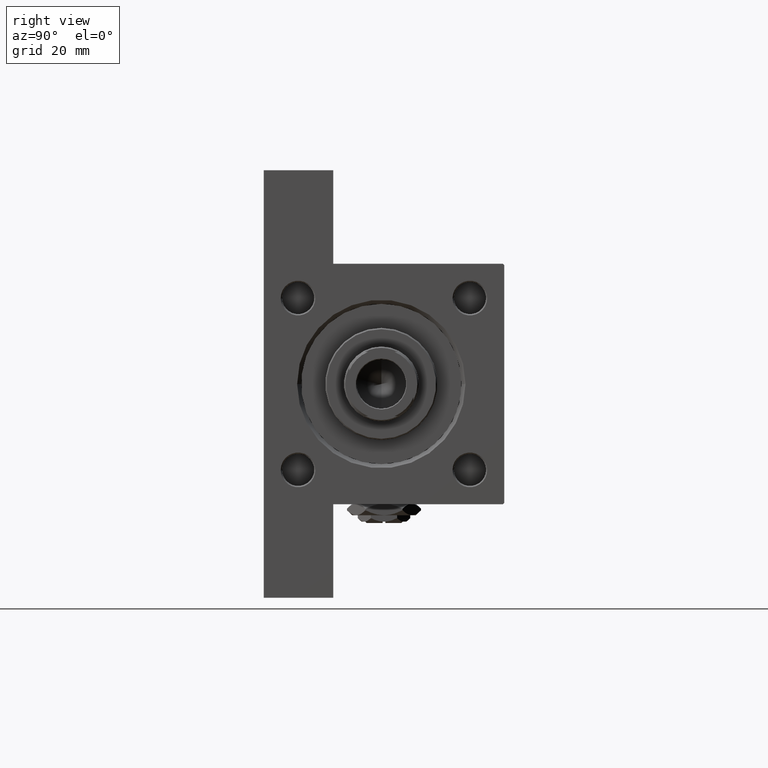
[diagram: clean part render]
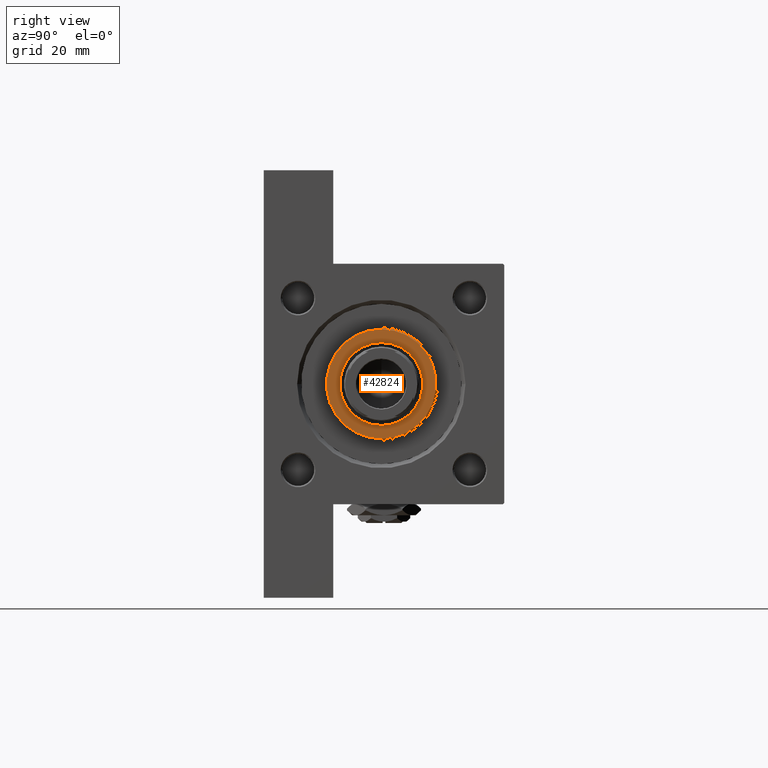
[diagram: same view with one face highlighted and labeled with its STEP entity id]
A machine part, right view. The second image highlights one B-rep face of the part: STEP entity #42824.
In plain terms, the highlighted planar face has unit normal (1, 0, 0).
Its self-contained STEP definition (entity closure, byte-faithful):
#457 = EDGE_CURVE ( 'NONE', #20790, #42852, #29901, .T. ) ;
#1327 = CARTESIAN_POINT ( 'NONE',  ( 0.000000000000000000, 0.000000000000000000, 39.69999999999999574 ) ) ;
#1701 = FACE_BOUND ( 'NONE', #8133, .T. ) ;
#2696 = DIRECTION ( 'NONE',  ( 1.000000000000000000, 0.000000000000000000, 0.000000000000000000 ) ) ;
#2760 = ORIENTED_EDGE ( 'NONE', *, *, #457, .F. ) ;
#3129 = CARTESIAN_POINT ( 'NONE',  ( -15.50000000000000000, 1.898202538678397557E-15, 39.69999999999999574 ) ) ;
#5334 = DIRECTION ( 'NONE',  ( 1.000000000000000000, 0.000000000000000000, 0.000000000000000000 ) ) ;
#8133 = EDGE_LOOP ( 'NONE', ( #2760, #46145 ) ) ;
#9274 = DIRECTION ( 'NONE',  ( 0.000000000000000000, 0.000000000000000000, 1.000000000000000000 ) ) ;
#9944 = VERTEX_POINT ( 'NONE', #17800 ) ;
#15339 = ORIENTED_EDGE ( 'NONE', *, *, #21143, .T. ) ;
#16235 = AXIS2_PLACEMENT_3D ( 'NONE', #24370, #9274, #20093 ) ;
#16917 = EDGE_CURVE ( 'NONE', #42852, #20790, #24298, .T. ) ;
#17043 = CARTESIAN_POINT ( 'NONE',  ( 0.000000000000000000, 0.000000000000000000, 39.69999999999999574 ) ) ;
#17800 = CARTESIAN_POINT ( 'NONE',  ( 20.50000000000000355, 2.541142108230758269E-15, 39.69999999999999574 ) ) ;
#17995 = AXIS2_PLACEMENT_3D ( 'NONE', #22481, #37829, #18712 ) ;
#18712 = DIRECTION ( 'NONE',  ( 1.000000000000000000, 0.000000000000000000, 0.000000000000000000 ) ) ;
#20093 = DIRECTION ( 'NONE',  ( 1.000000000000000000, 0.000000000000000000, 0.000000000000000000 ) ) ;
#20790 = VERTEX_POINT ( 'NONE', #24995 ) ;
#21143 = EDGE_CURVE ( 'NONE', #9944, #48487, #37655, .T. ) ;
#22392 = AXIS2_PLACEMENT_3D ( 'NONE', #1327, #28223, #5334 ) ;
#22481 = CARTESIAN_POINT ( 'NONE',  ( 0.000000000000000000, 0.000000000000000000, 39.69999999999999574 ) ) ;
#24298 = CIRCLE ( 'NONE', #33123, 15.50000000000000000 ) ;
#24340 = DIRECTION ( 'NONE',  ( 1.000000000000000000, 0.000000000000000000, -0.000000000000000000 ) ) ;
#24370 = CARTESIAN_POINT ( 'NONE',  ( 0.000000000000000000, 0.000000000000000000, 39.69999999999999574 ) ) ;
#24819 = FACE_OUTER_BOUND ( 'NONE', #47168, .T. ) ;
#24995 = CARTESIAN_POINT ( 'NONE',  ( 15.50000000000000000, 0.000000000000000000, 39.69999999999999574 ) ) ;
#28068 = CARTESIAN_POINT ( 'NONE',  ( -20.50000000000000355, 0.000000000000000000, 39.69999999999999574 ) ) ;
#28223 = DIRECTION ( 'NONE',  ( 0.000000000000000000, 0.000000000000000000, 1.000000000000000000 ) ) ;
#29901 = CIRCLE ( 'NONE', #16235, 15.50000000000000000 ) ;
#32390 = DIRECTION ( 'NONE',  ( 0.000000000000000000, 0.000000000000000000, 1.000000000000000000 ) ) ;
#33123 = AXIS2_PLACEMENT_3D ( 'NONE', #48706, #44937, #2696 ) ;
#37576 = PLANE ( 'NONE',  #40513 ) ;
#37655 = CIRCLE ( 'NONE', #22392, 20.50000000000000355 ) ;
#37829 = DIRECTION ( 'NONE',  ( 0.000000000000000000, 0.000000000000000000, 1.000000000000000000 ) ) ;
#40513 = AXIS2_PLACEMENT_3D ( 'NONE', #17043, #32390, #24340 ) ;
#41614 = ORIENTED_EDGE ( 'NONE', *, *, #42914, .T. ) ;
#42824 = ADVANCED_FACE ( 'NONE', ( #1701, #24819 ), #37576, .T. ) ;
#42852 = VERTEX_POINT ( 'NONE', #3129 ) ;
#42914 = EDGE_CURVE ( 'NONE', #48487, #9944, #46937, .T. ) ;
#44937 = DIRECTION ( 'NONE',  ( 0.000000000000000000, 0.000000000000000000, 1.000000000000000000 ) ) ;
#46145 = ORIENTED_EDGE ( 'NONE', *, *, #16917, .F. ) ;
#46937 = CIRCLE ( 'NONE', #17995, 20.50000000000000355 ) ;
#47168 = EDGE_LOOP ( 'NONE', ( #41614, #15339 ) ) ;
#48487 = VERTEX_POINT ( 'NONE', #28068 ) ;
#48706 = CARTESIAN_POINT ( 'NONE',  ( 0.000000000000000000, 0.000000000000000000, 39.69999999999999574 ) ) ;